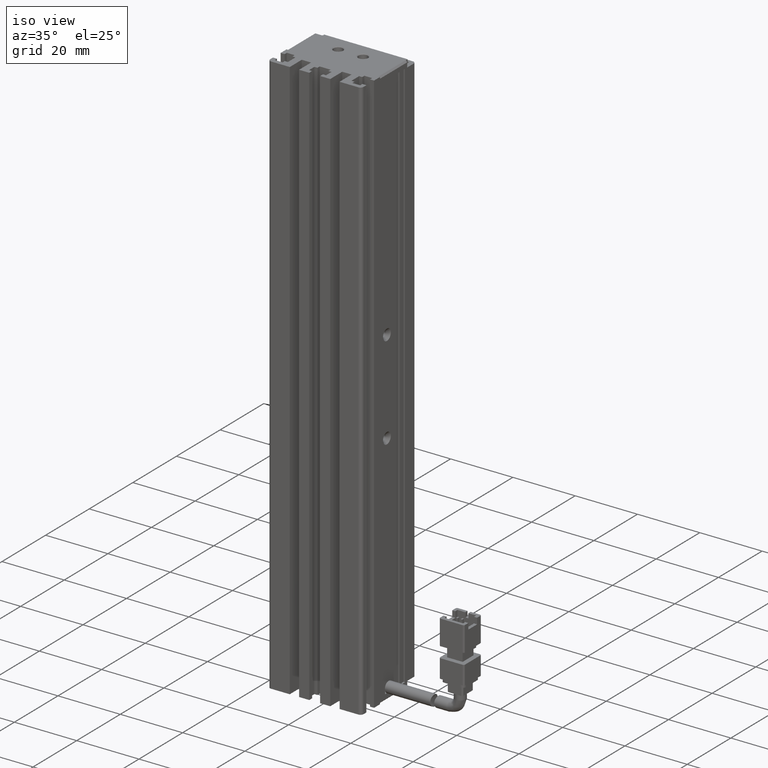
[diagram: clean part render]
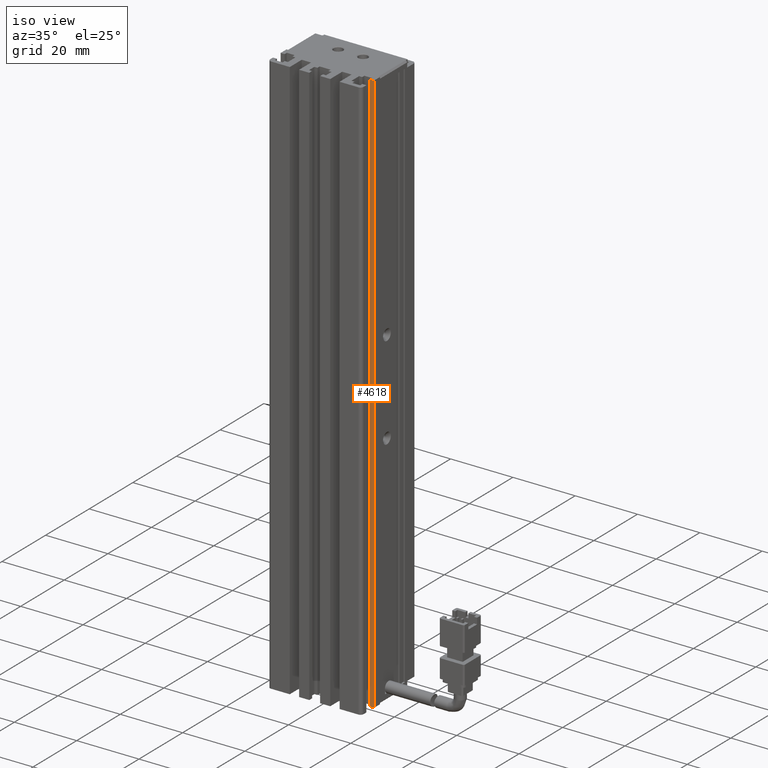
[diagram: same view with one face highlighted and labeled with its STEP entity id]
A machine part, iso view. The second image highlights one B-rep face of the part: STEP entity #4618.
In plain terms, the highlighted planar face has unit normal (-0, -1, 0).
Its self-contained STEP definition (entity closure, byte-faithful):
#4372 = LINE ( 'NONE', #34481, #38879 ) ;
#4541 = CARTESIAN_POINT ( 'NONE',  ( 55.92537974683542500, 16.49594479660387200, -206.0000000000000300 ) ) ;
#4618 = ADVANCED_FACE ( 'NONE', ( #38487 ), #14731, .T. ) ;
#5265 = EDGE_LOOP ( 'NONE', ( #26348, #22747, #33398, #19742 ) ) ;
#5623 = VERTEX_POINT ( 'NONE', #25354 ) ;
#12747 = AXIS2_PLACEMENT_3D ( 'NONE', #14181, #14054, #14015 ) ;
#14015 = DIRECTION ( 'NONE',  ( 1.000000000000000000, -4.003208021484953500E-015, 0.0000000000000000000 ) ) ;
#14054 = DIRECTION ( 'NONE',  ( -4.003208021484953500E-015, -1.000000000000000000, 0.0000000000000000000 ) ) ;
#14181 = CARTESIAN_POINT ( 'NONE',  ( 40.92537974683546100, 16.49594479660393300, -24.00000000000000700 ) ) ;
#14731 = PLANE ( 'NONE',  #12747 ) ;
#15803 = VECTOR ( 'NONE', #32859, 1000.000000000000000 ) ;
#16052 = CARTESIAN_POINT ( 'NONE',  ( 40.92537974683542500, 16.49594479660387900, -206.0000000000000300 ) ) ;
#16823 = EDGE_CURVE ( 'NONE', #20261, #29641, #30498, .T. ) ;
#18282 = DIRECTION ( 'NONE',  ( -1.000000000000000000, 4.003208021484953500E-015, -0.0000000000000000000 ) ) ;
#19742 = ORIENTED_EDGE ( 'NONE', *, *, #32540, .T. ) ;
#20261 = VERTEX_POINT ( 'NONE', #40259 ) ;
#21117 = LINE ( 'NONE', #34931, #28903 ) ;
#22747 = ORIENTED_EDGE ( 'NONE', *, *, #16823, .T. ) ;
#23291 = EDGE_CURVE ( 'NONE', #5623, #20261, #21117, .T. ) ;
#24720 = LINE ( 'NONE', #16052, #15803 ) ;
#25354 = CARTESIAN_POINT ( 'NONE',  ( 55.92537974683542500, 16.49594479660387200, -23.99999999999999300 ) ) ;
#26348 = ORIENTED_EDGE ( 'NONE', *, *, #23291, .T. ) ;
#28143 = VERTEX_POINT ( 'NONE', #4541 ) ;
#28433 = EDGE_CURVE ( 'NONE', #29641, #28143, #24720, .T. ) ;
#28903 = VECTOR ( 'NONE', #18282, 1000.000000000000000 ) ;
#29641 = VERTEX_POINT ( 'NONE', #33736 ) ;
#30498 = LINE ( 'NONE', #32136, #39356 ) ;
#32136 = CARTESIAN_POINT ( 'NONE',  ( 54.62537974683542800, 16.49594479660387900, -24.00000000000000700 ) ) ;
#32540 = EDGE_CURVE ( 'NONE', #28143, #5623, #4372, .T. ) ;
#32859 = DIRECTION ( 'NONE',  ( 1.000000000000000000, 0.0000000000000000000, 0.0000000000000000000 ) ) ;
#33398 = ORIENTED_EDGE ( 'NONE', *, *, #28433, .T. ) ;
#33736 = CARTESIAN_POINT ( 'NONE',  ( 54.62537974683542800, 16.49594479660387900, -206.0000000000000300 ) ) ;
#34481 = CARTESIAN_POINT ( 'NONE',  ( 55.92537974683542500, 16.49594479660387200, -24.00000000000000700 ) ) ;
#34931 = CARTESIAN_POINT ( 'NONE',  ( 40.92537974683546100, 16.49594479660393300, -24.00000000000000700 ) ) ;
#37822 = DIRECTION ( 'NONE',  ( 0.0000000000000000000, 0.0000000000000000000, 1.000000000000000000 ) ) ;
#38487 = FACE_OUTER_BOUND ( 'NONE', #5265, .T. ) ;
#38596 = DIRECTION ( 'NONE',  ( -0.0000000000000000000, -0.0000000000000000000, -1.000000000000000000 ) ) ;
#38879 = VECTOR ( 'NONE', #37822, 1000.000000000000000 ) ;
#39356 = VECTOR ( 'NONE', #38596, 1000.000000000000000 ) ;
#40259 = CARTESIAN_POINT ( 'NONE',  ( 54.62537974683542800, 16.49594479660387900, -23.99999999999999300 ) ) ;